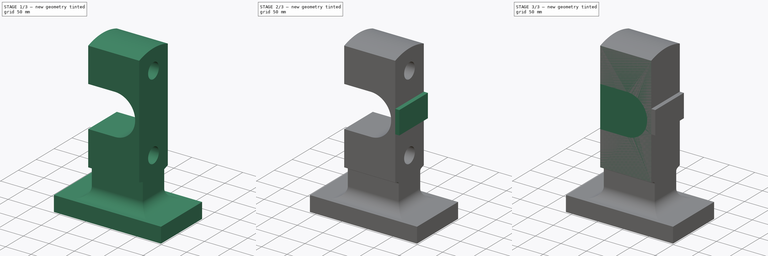
[diagram: build sequence overview — one tinted view per stage of 3, left to right]
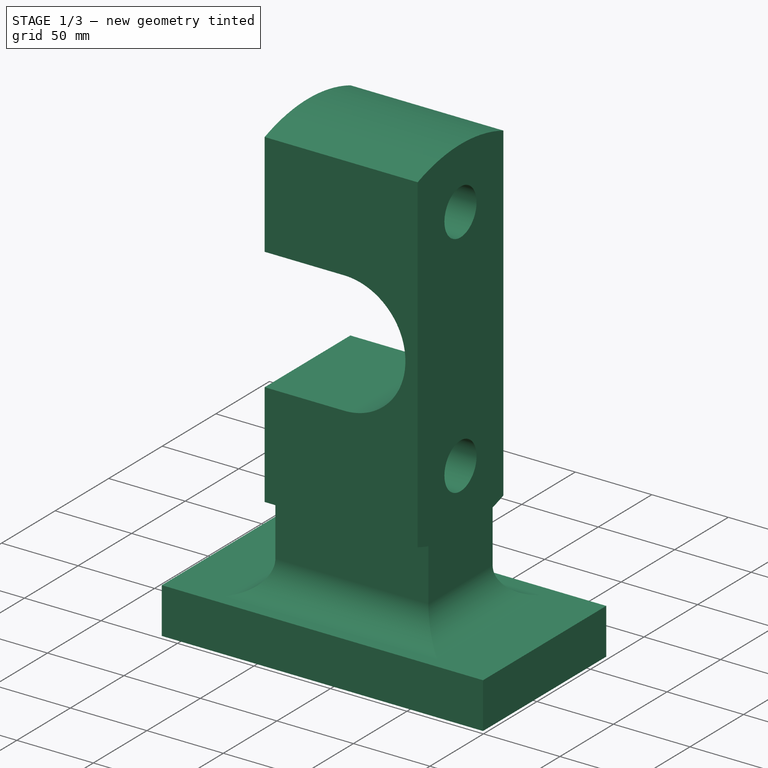
[diagram: stage 1 of 3 — iso view after this stage's code; geometry added in this stage tinted green]
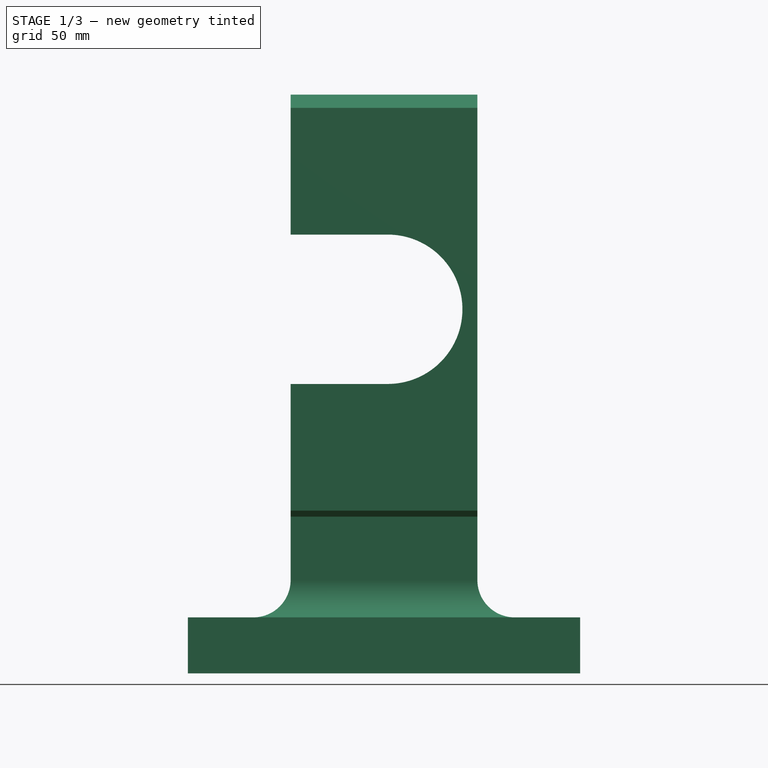
[diagram: stage 1 of 3 — front view after this stage's code; geometry added in this stage tinted green]
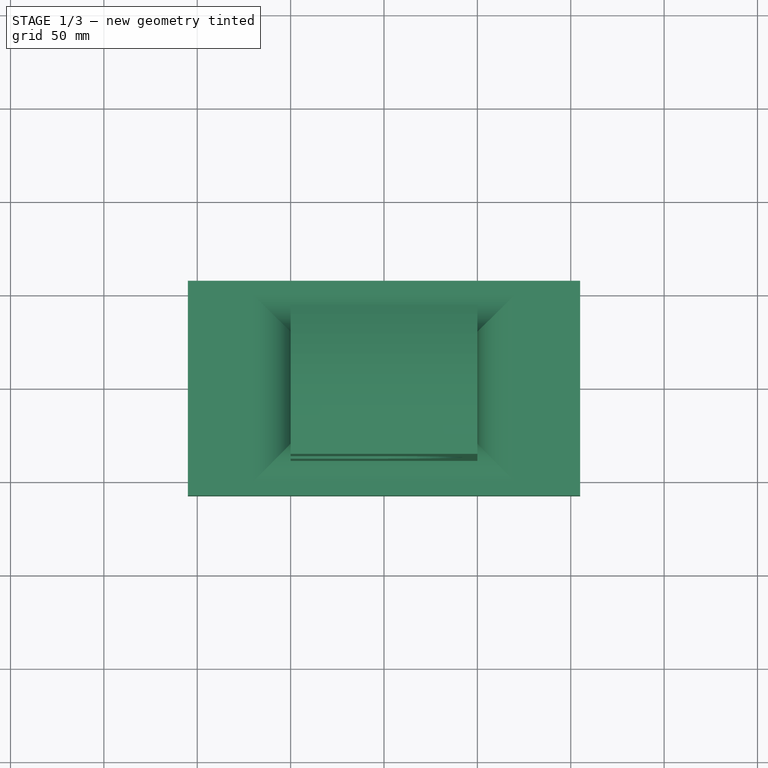
[diagram: stage 1 of 3 — top view after this stage's code; geometry added in this stage tinted green]
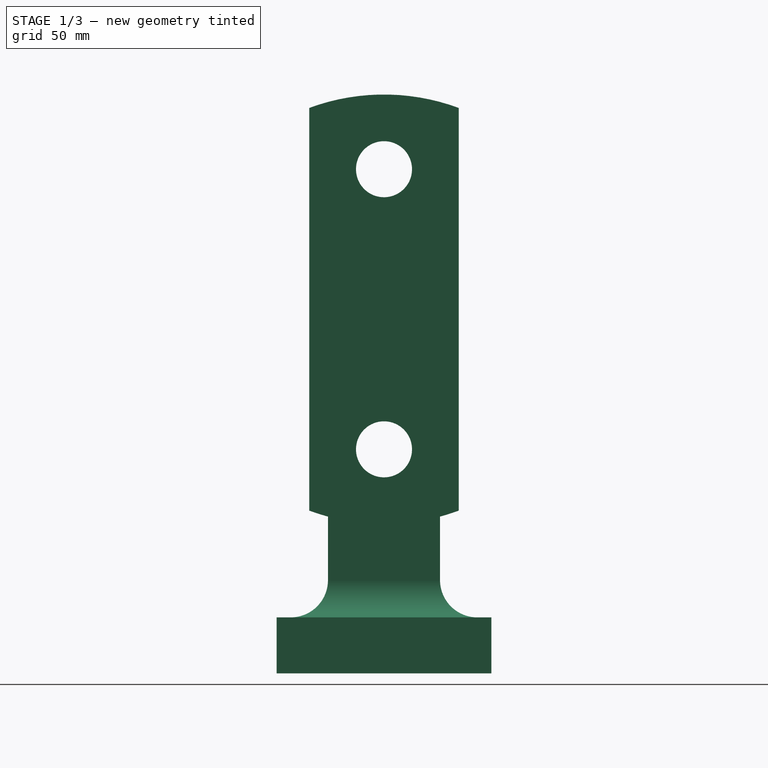
[diagram: stage 1 of 3 — right view after this stage's code; geometry added in this stage tinted green]
FCSTD DOCUMENT  (FreeCAD 0.16RUnknown)
Label: cuerpo1
License: All rights reserved
LicenseURL: http://en.wikipedia.org/wiki/All_rights_reserved
objects: Sketcher::SketchObject×6, PartDesign::Pad×3, PartDesign::Pocket×3, PartDesign::Fillet×2, Part::Feature×1
note: 21 computed .brp shape members not serialized (recipe doc carries the construction recipe); baked Part::Feature solids carry a one-line shape summary decoded from their .brp

FEATURE [Part::Feature] Pocket001
  shape: bbox 210 x 115 x 310 mm, 15 faces (baked)
FEATURE [PartDesign::Fillet] Fillet
  Base = -> Pocket001 [Edge15,Edge16,Edge13,Edge14]
  Radius = 20
FEATURE [Sketcher::SketchObject] Sketch003
  ExternalGeometry = -> [Fillet]
  Placement = pos=(50,0,0) rot=(0.57735,0.57735,0.57735;2.0944rad)
  Support = -> Fillet [Face10]
  sketch-geometry (2):
    g0: Circle CenterX=0 CenterY=270 CenterZ=0 NormalX=0 NormalY=0 NormalZ=1 Radius=15
    g1: Circle CenterX=0 CenterY=120 CenterZ=0 NormalX=0 NormalY=0 NormalZ=1 Radius=15
  constraints (6):
    c: PointOnObject(g1,g-2)
    c: Radius(g1) = 15
    c: Equal(g1,g0)
    c: DistanceY(g1,g0) = 150
    c: DistanceY(g-3,g1) = 90
    c: PointOnObject(g0,g-2)
FEATURE [PartDesign::Pocket] Pocket002
  Length = 5
  Sketch = -> Sketch003
  Type = 1
FEATURE [Sketcher::SketchObject] Sketch004
  ExternalGeometry = -> [Pocket002]
  Placement = pos=(0,-40,0) rot=(1,0,0;1.5708rad)
  Support = -> Pocket002 [Face19]
  sketch-geometry (4):
    g0: LineSegment StartX=-50 StartY=235 StartZ=0 EndX=2 EndY=235 EndZ=0
    g1: LineSegment StartX=2 StartY=155 StartZ=0 EndX=-50 EndY=155 EndZ=0
    g2: LineSegment StartX=-50 StartY=155 StartZ=0 EndX=-50 EndY=235 EndZ=0
    g3: ArcOfCircle CenterX=2 CenterY=195 CenterZ=0 NormalX=0 NormalY=0 NormalZ=1 Radius=40 StartAngle=4.71239 EndAngle=7.85398
  constraints (13):
    c: Coincident(g1,g2)
    c: Horizontal(g1)
    c: Vertical(g2)
    c: Coincident(g3,g0)
    c: Tangent(g3,g0)
    c: Coincident(g1,g3)
    c: Tangent(g3,g1)
    c: DistanceY(g2,g2) = 80
    c: Coincident(g0,g2)
    c: Horizontal(g0)
    c: DistanceX(g0,g0) = 52
    c: PointOnObject(g0,g-3)
    c: DistanceY(g-1,g3) = 195
FEATURE [PartDesign::Pocket] Pocket003
  Length = 5
  Sketch = -> Sketch004
  Type = 1
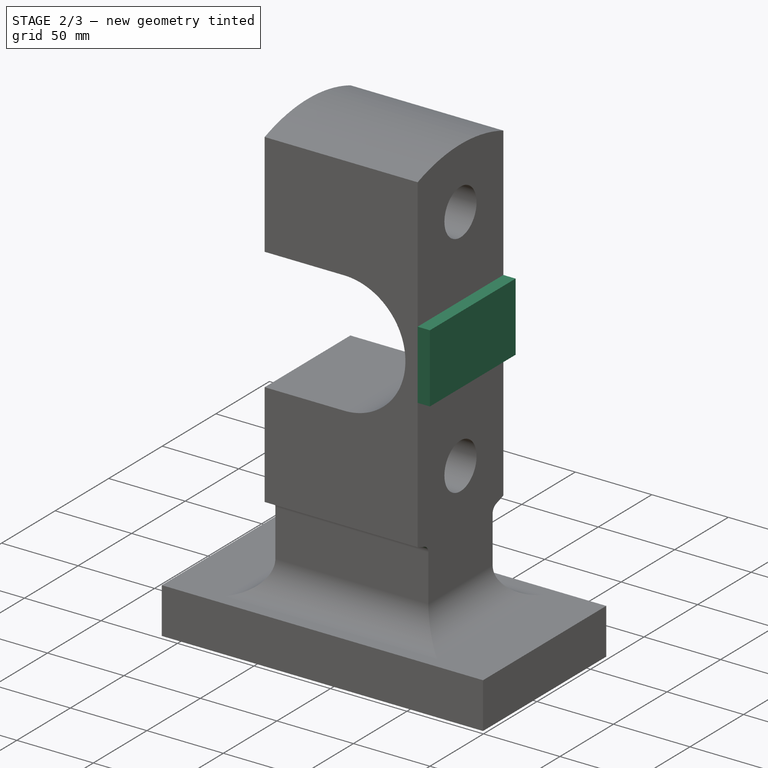
[diagram: stage 2 of 3 — iso view after this stage's code; geometry added in this stage tinted green]
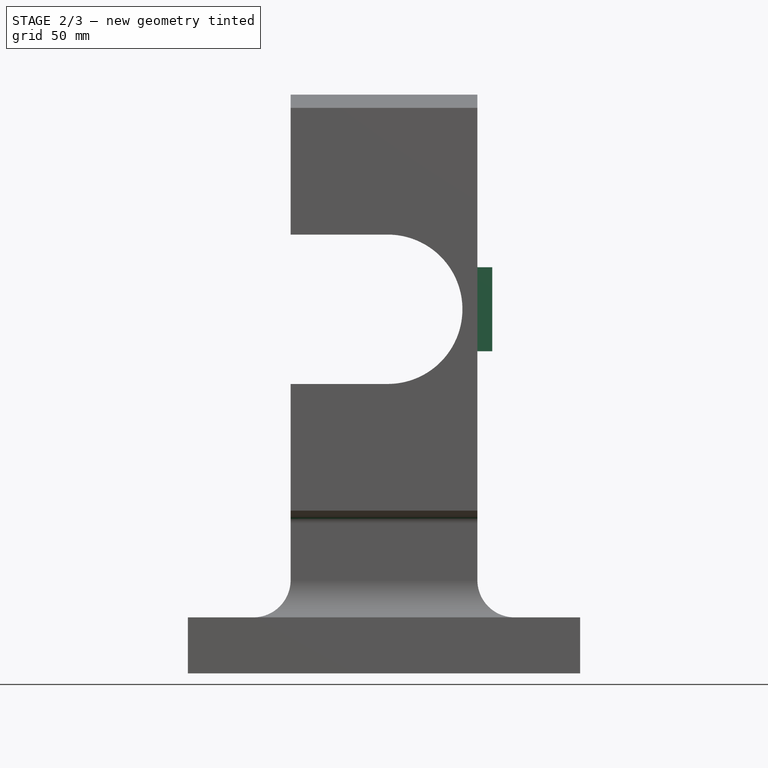
[diagram: stage 2 of 3 — front view after this stage's code; geometry added in this stage tinted green]
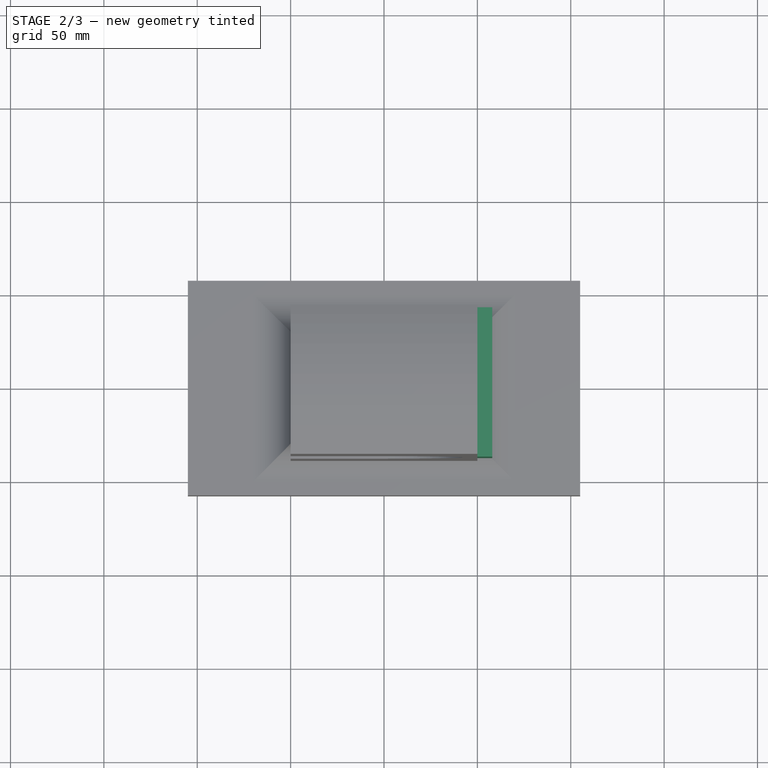
[diagram: stage 2 of 3 — top view after this stage's code; geometry added in this stage tinted green]
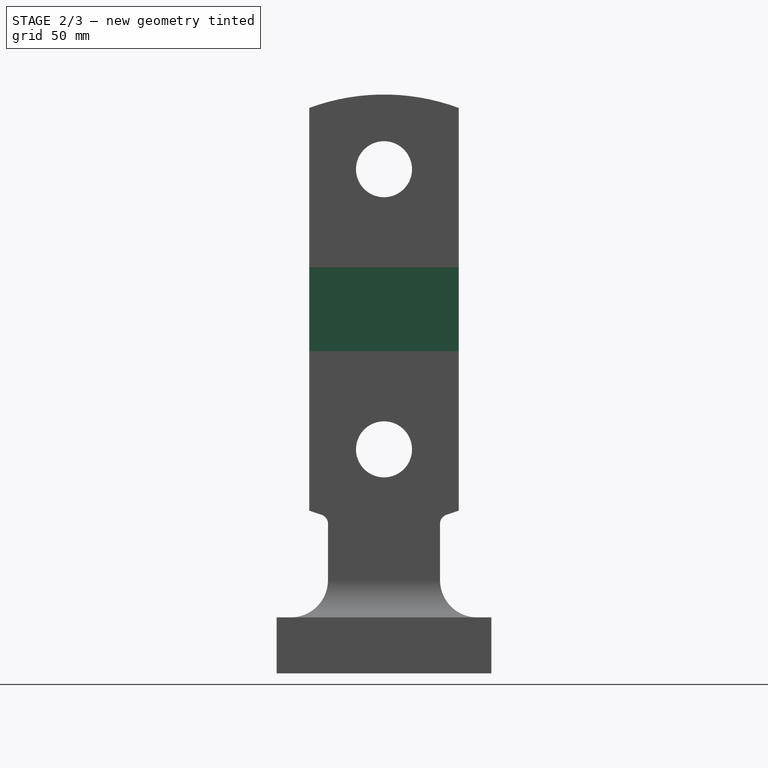
[diagram: stage 2 of 3 — right view after this stage's code; geometry added in this stage tinted green]
FEATURE [Sketcher::SketchObject] Sketch005
  ExternalGeometry = -> [Pocket003]
  Placement = pos=(0,-40,0) rot=(1,0,0;1.5708rad)
  Support = -> Pocket003 [Face19]
  sketch-geometry (5):
    g0: LineSegment [constr] StartX=-76.8206 StartY=195 StartZ=0 EndX=147.4 EndY=195 EndZ=0
    g1: LineSegment StartX=50 StartY=172.5 StartZ=0 EndX=58 EndY=172.5 EndZ=0
    g2: LineSegment StartX=58 StartY=172.5 StartZ=0 EndX=58 EndY=217.5 EndZ=0
    g3: LineSegment StartX=58 StartY=217.5 StartZ=0 EndX=50 EndY=217.5 EndZ=0
    g4: LineSegment StartX=50 StartY=217.5 StartZ=0 EndX=50 EndY=172.5 EndZ=0
  constraints (14):
    c: PointOnObject(g-3,g0)
    c: Horizontal(g0)
    c: Coincident(g1,g2)
    c: Coincident(g2,g3)
    c: Coincident(g3,g4)
    c: Coincident(g4,g1)
    c: Horizontal(g1)
    c: Horizontal(g3)
    c: Vertical(g2)
    c: Vertical(g4)
    c: Symmetric(g1,g2,g0)
    c: DistanceY(g2,g2) = 45
    c: PointOnObject(g3,g-4)
    c: DistanceX(g3,g2) = 8
FEATURE [PartDesign::Pad] Pad002
  Length = 80
  Length2 = 100
  Reversed = true
  Sketch = -> Sketch005
  Type = 0
FEATURE [PartDesign::Fillet] Fillet001
  Base = -> Pad002 [Edge34,Edge36]
  Radius = 5
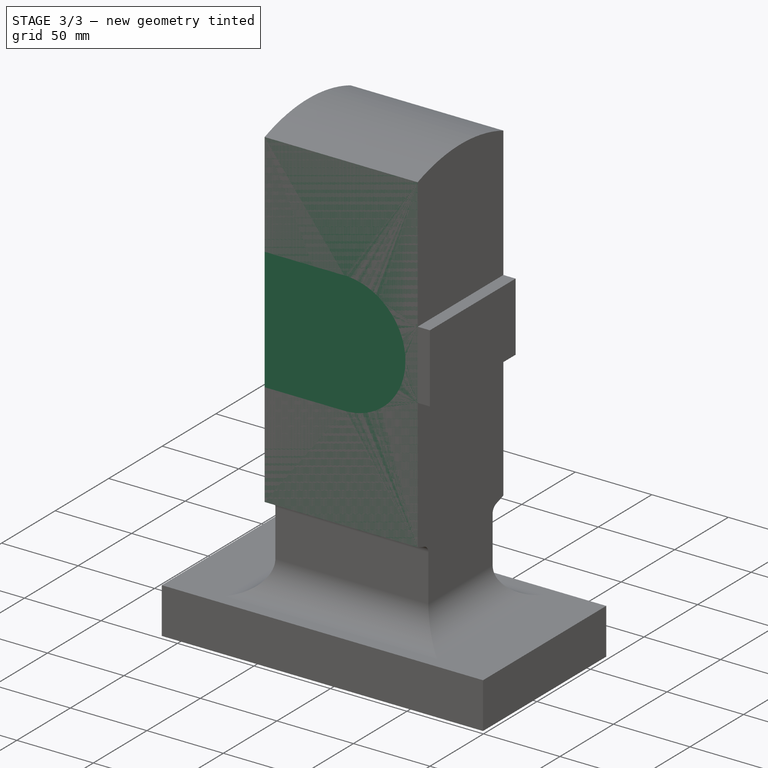
[diagram: stage 3 of 3 — iso view after this stage's code; geometry added in this stage tinted green]
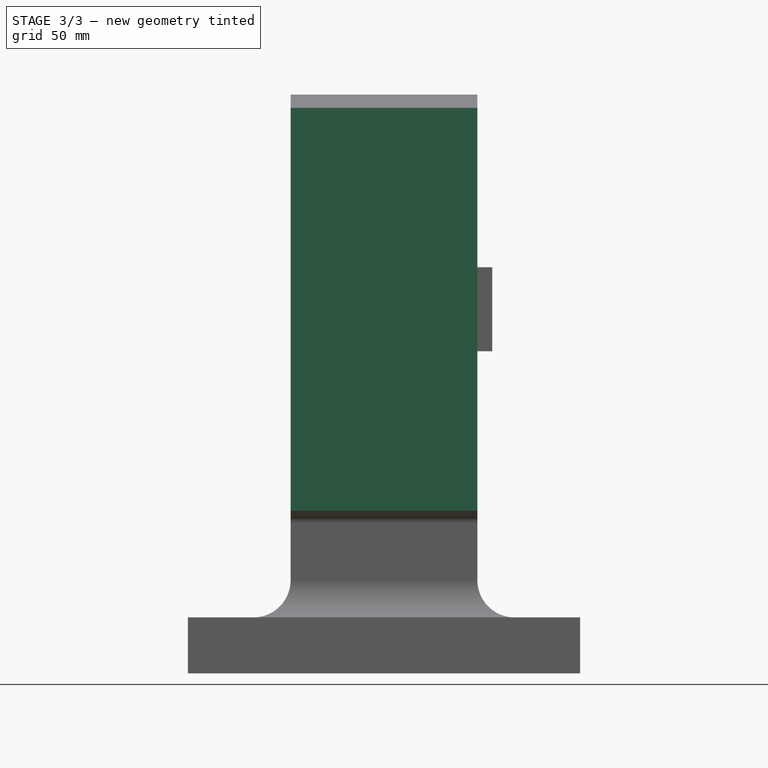
[diagram: stage 3 of 3 — front view after this stage's code; geometry added in this stage tinted green]
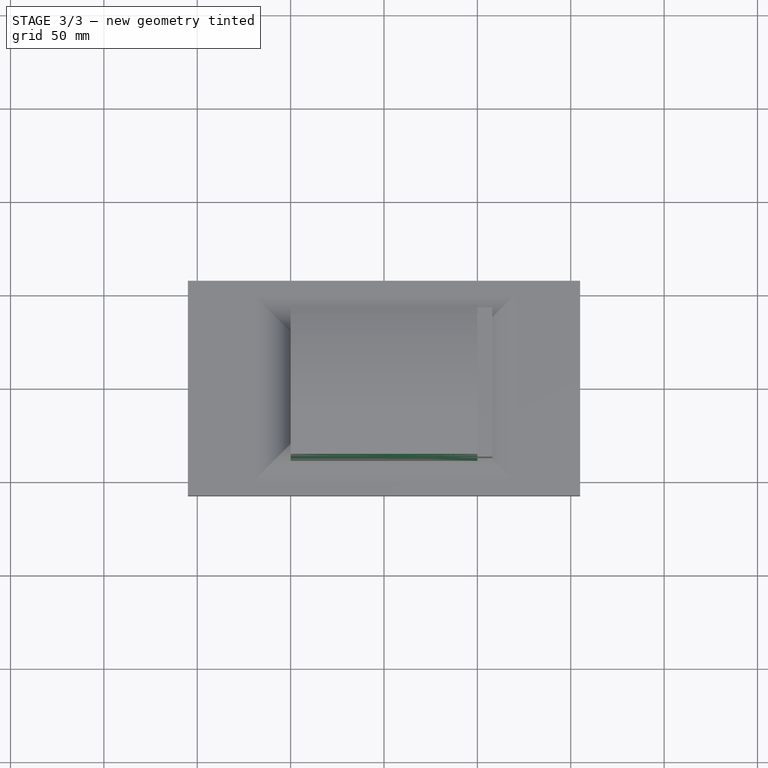
[diagram: stage 3 of 3 — top view after this stage's code; geometry added in this stage tinted green]
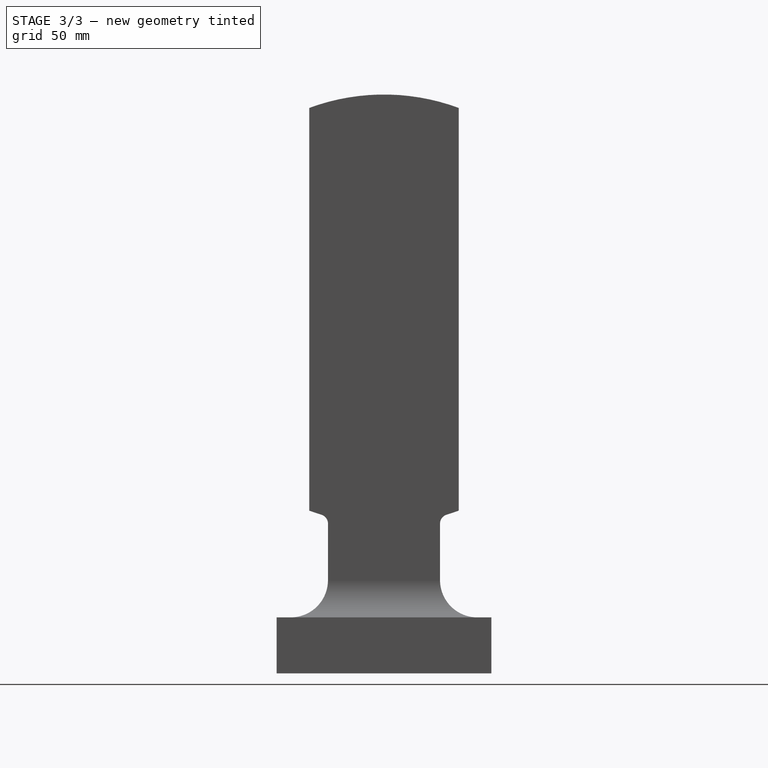
[diagram: stage 3 of 3 — right view after this stage's code; geometry added in this stage tinted green]
FEATURE [Sketcher::SketchObject] Sketch
  sketch-geometry (4):
    g0: LineSegment StartX=-105 StartY=57.5 StartZ=0 EndX=105 EndY=57.5 EndZ=0
    g1: LineSegment StartX=105 StartY=57.5 StartZ=0 EndX=105 EndY=-57.5 EndZ=0
    g2: LineSegment StartX=105 StartY=-57.5 StartZ=0 EndX=-105 EndY=-57.5 EndZ=0
    g3: LineSegment StartX=-105 StartY=-57.5 StartZ=0 EndX=-105 EndY=57.5 EndZ=0
  constraints (12):
    c: Coincident(g0,g1)
    c: Coincident(g1,g2)
    c: Coincident(g2,g3)
    c: Coincident(g3,g0)
    c: Horizontal(g0)
    c: Horizontal(g2)
    c: Vertical(g1)
    c: Vertical(g3)
    c: Symmetric(g1,g0,g-1)
    c: Symmetric(g0,g0,g-2)
    c: DistanceX(g2,g2) = 210
    c: DistanceY(g3,g3) = 115
FEATURE [PartDesign::Pad] Pad
  Length = 30
  Length2 = 100
  Sketch = -> Sketch
  Type = 0
FEATURE [Sketcher::SketchObject] Sketch001
  Placement = pos=(0,0,30) rot=(0,0,1;0rad)
  Support = -> Pad [Face6]
  sketch-geometry (4):
    g0: LineSegment StartX=-50 StartY=40 StartZ=0 EndX=50 EndY=40 EndZ=0
    g1: LineSegment StartX=50 StartY=40 StartZ=0 EndX=50 EndY=-40 EndZ=0
    g2: LineSegment StartX=50 StartY=-40 StartZ=0 EndX=-50 EndY=-40 EndZ=0
    g3: LineSegment StartX=-50 StartY=-40 StartZ=0 EndX=-50 EndY=40 EndZ=0
  constraints (12):
    c: Coincident(g0,g1)
    c: Coincident(g1,g2)
    c: Coincident(g2,g3)
    c: Coincident(g3,g0)
    c: Horizontal(g0)
    c: Horizontal(g2)
    c: Vertical(g1)
    c: Vertical(g3)
    c: Symmetric(g0,g1,g-1)
    c: Symmetric(g0,g0,g-2)
    c: DistanceX(g2,g2) = 100
    c: DistanceY(g3,g3) = 80
FEATURE [PartDesign::Pad] Pad001
  Length = 330
  Length2 = 100
  Sketch = -> Sketch001
  Type = 0
FEATURE [Sketcher::SketchObject] Sketch002
  ExternalGeometry = -> [Pad001]
  Placement = pos=(-50,0,0) rot=(0.57735,-0.57735,-0.57735;2.0944rad)
  Support = -> Pad001 [Face8]
  sketch-geometry (12):
    g0: ArcOfCircle CenterX=0 CenterY=195 CenterZ=0 NormalX=0 NormalY=0 NormalZ=1 Radius=115 StartAngle=0.978929 EndAngle=2.29082
    g1: ArcOfCircle CenterX=0 CenterY=195 CenterZ=0 NormalX=0 NormalY=0 NormalZ=1 Radius=115 StartAngle=4.97631 EndAngle=5.29673
    g2: ArcOfCircle CenterX=0 CenterY=195 CenterZ=0 NormalX=0 NormalY=0 NormalZ=1 Radius=115 StartAngle=3.98086 EndAngle=4.44847
    g3: LineSegment StartX=63.4397 StartY=99.0813 StartZ=0 EndX=69.5679 EndY=30 EndZ=0
    g4: LineSegment StartX=69.5679 StartY=30 StartZ=0 EndX=30 EndY=30 EndZ=0
    g5: LineSegment StartX=30 StartY=30 StartZ=0 EndX=30 EndY=83.982 EndZ=0
    g6: LineSegment StartX=-76.8211 StartY=109.422 StartZ=0 EndX=-79.8071 EndY=30 EndZ=0
    g7: LineSegment StartX=-79.8071 StartY=30 StartZ=0 EndX=-30 EndY=30 EndZ=0
    g8: LineSegment StartX=-30 StartY=30 StartZ=0 EndX=-30 EndY=83.982 EndZ=0
    g9: LineSegment StartX=-75.8314 StartY=281.456 StartZ=0 EndX=-80.8467 EndY=460.783 EndZ=0
    g10: LineSegment StartX=-80.8467 StartY=460.783 StartZ=0 EndX=57.2091 EndY=406.872 EndZ=0
    g11: LineSegment StartX=57.2091 StartY=406.872 StartZ=0 EndX=64.1599 EndY=290.439 EndZ=0
  constraints (24):
    c: Coincident(g1,g0)
    c: Equal(g1,g0)
    c: PointOnObject(g0,g-2)
    c: Radius(g0) = 115
    c: Coincident(g2,g0)
    c: Equal(g2,g1)
    c: Symmetric(g1,g2,g-2)
    c: Coincident(g1,g3)
    c: Coincident(g3,g4)
    c: Coincident(g4,g5)
    c: Coincident(g5,g1)
    c: Coincident(g6,g7)
    c: Coincident(g7,g8)
    c: Coincident(g8,g2)
    c: Horizontal(g7)
    c: Horizontal(g4)
    c: Vertical(g5)
    c: Vertical(g8)
    c: DistanceX(g2,g1) = 60
    c: Coincident(g0,g9)
    c: Coincident(g9,g10)
    c: Coincident(g10,g11)
    c: Coincident(g11,g0)
    c: Coincident(g2,g6)
FEATURE [PartDesign::Pocket] Pocket
  Length = 5
  Sketch = -> Sketch002
  Type = 1
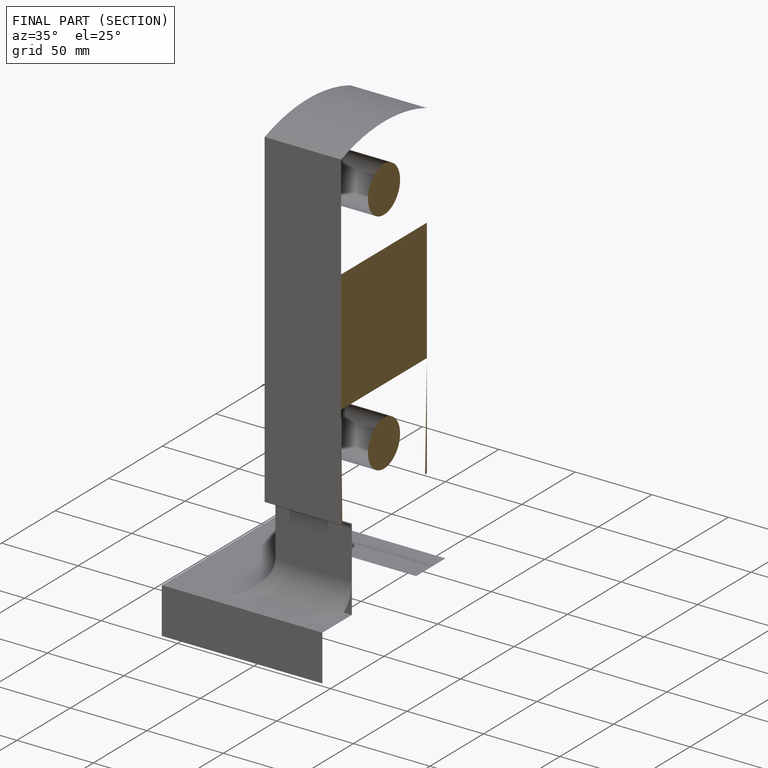
[diagram: finished part — half-section view (interior)]
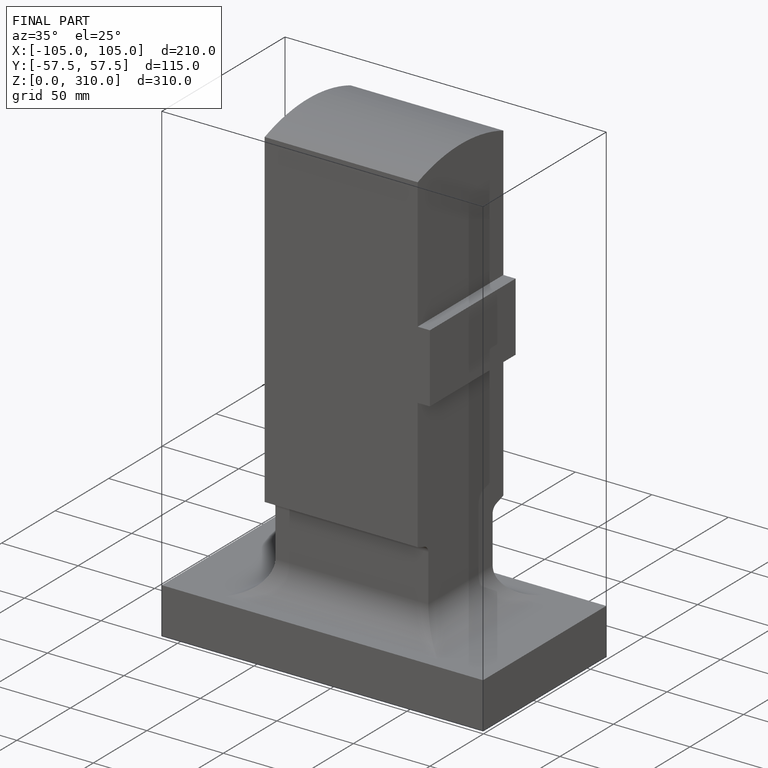
[diagram: finished part — iso view with bounding-box wireframe]
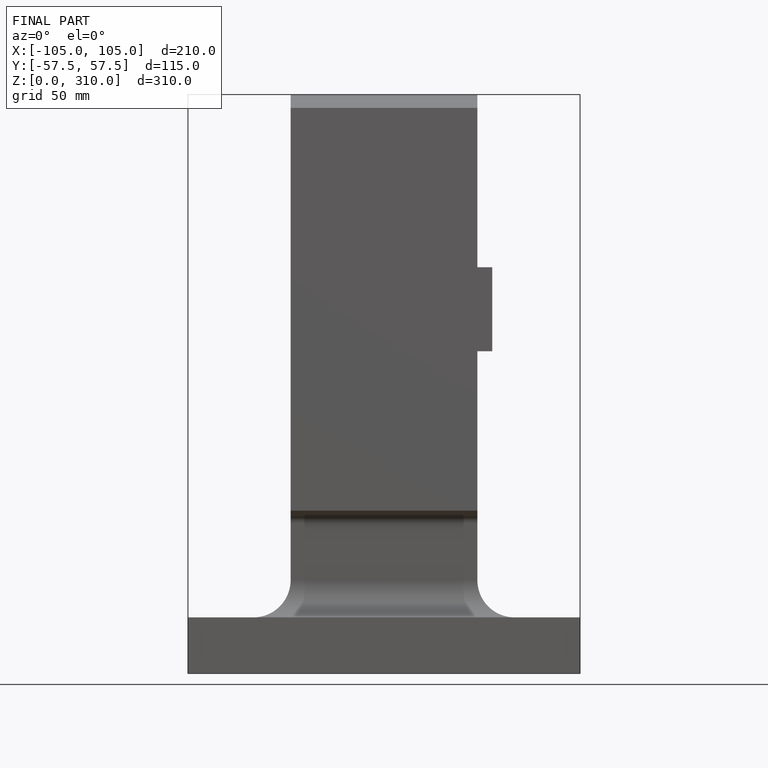
[diagram: finished part — front view with bounding-box wireframe]
